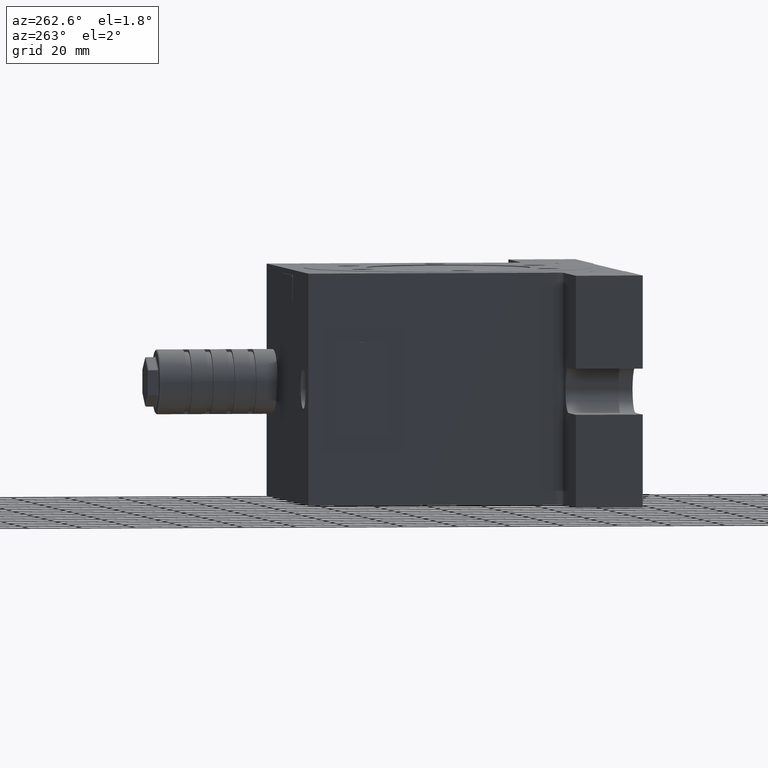
[diagram: clean part render]
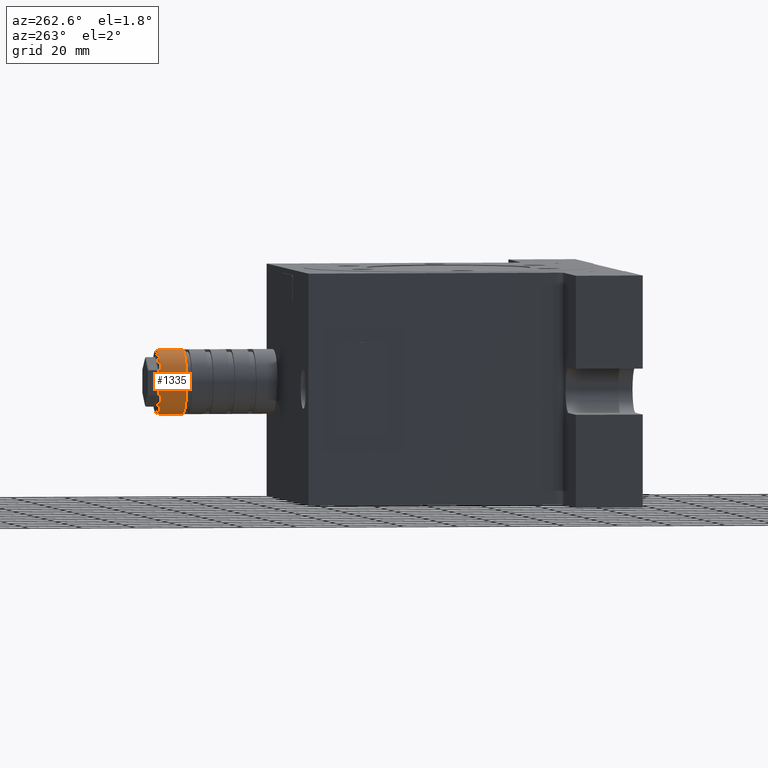
[diagram: same view with one face highlighted and labeled with its STEP entity id]
A machine part, auxiliary view. The second image highlights one B-rep face of the part: STEP entity #1335.
In plain terms, the highlighted cylindrical surface (edge-blend (fillet) strip) has radius 12 mm, axis along (0, -1, 0).
Its self-contained STEP definition (entity closure, byte-faithful):
#59 = EDGE_CURVE ( 'NONE', #2944, #10993, #1687, .T. ) ;
#64 = CARTESIAN_POINT ( 'NONE',  ( 40.00000000000000000, 94.00000000000000000, 0.0000000000000000000 ) ) ;
#362 = DIRECTION ( 'NONE',  ( 0.0000000000000000000, -1.000000000000000000, 0.0000000000000000000 ) ) ;
#761 = CARTESIAN_POINT ( 'NONE',  ( 40.00000000000000000, 103.5000000000000000, -12.00000000000000000 ) ) ;
#1335 = ADVANCED_FACE ( 'NONE', ( #1885 ), #14977, .T. ) ;
#1667 = AXIS2_PLACEMENT_3D ( 'NONE', #14457, #11021, #9215 ) ;
#1687 = LINE ( 'NONE', #17852, #16370 ) ;
#1697 = ORIENTED_EDGE ( 'NONE', *, *, #19997, .T. ) ;
#1768 = EDGE_CURVE ( 'NONE', #2013, #10993, #5868, .T. ) ;
#1885 = FACE_OUTER_BOUND ( 'NONE', #14438, .T. ) ;
#2013 = VERTEX_POINT ( 'NONE', #5761 ) ;
#2944 = VERTEX_POINT ( 'NONE', #12645 ) ;
#4567 = DIRECTION ( 'NONE',  ( 0.0000000000000000000, -1.000000000000000000, 0.0000000000000000000 ) ) ;
#5761 = CARTESIAN_POINT ( 'NONE',  ( 40.00000000000000000, 94.00000000000000000, -12.00000000000000000 ) ) ;
#5868 = CIRCLE ( 'NONE', #5942, 12.00000000000000000 ) ;
#5942 = AXIS2_PLACEMENT_3D ( 'NONE', #64, #13796, #19017 ) ;
#6357 = VECTOR ( 'NONE', #362, 1000.000000000000000 ) ;
#7128 = LINE ( 'NONE', #7446, #6357 ) ;
#7446 = CARTESIAN_POINT ( 'NONE',  ( 40.00000000000000000, 104.0000000000000000, -12.00000000000000000 ) ) ;
#9215 = DIRECTION ( 'NONE',  ( 0.0000000000000000000, 0.0000000000000000000, -1.000000000000000000 ) ) ;
#10217 = ORIENTED_EDGE ( 'NONE', *, *, #19601, .T. ) ;
#10993 = VERTEX_POINT ( 'NONE', #19558 ) ;
#11021 = DIRECTION ( 'NONE',  ( -0.0000000000000000000, -1.000000000000000000, -0.0000000000000000000 ) ) ;
#11884 = ORIENTED_EDGE ( 'NONE', *, *, #1768, .T. ) ;
#12645 = CARTESIAN_POINT ( 'NONE',  ( 40.00000000000000000, 103.5000000000000000, 12.00000000000000000 ) ) ;
#13796 = DIRECTION ( 'NONE',  ( 0.0000000000000000000, 1.000000000000000000, 0.0000000000000000000 ) ) ;
#14438 = EDGE_LOOP ( 'NONE', ( #1697, #10217, #11884, #17537 ) ) ;
#14457 = CARTESIAN_POINT ( 'NONE',  ( 40.00000000000000000, 103.5000000000000000, 0.0000000000000000000 ) ) ;
#14977 = CYLINDRICAL_SURFACE ( 'NONE', #18564, 12.00000000000000000 ) ;
#15966 = DIRECTION ( 'NONE',  ( 0.0000000000000000000, -1.000000000000000000, 0.0000000000000000000 ) ) ;
#15967 = CIRCLE ( 'NONE', #1667, 12.00000000000000000 ) ;
#16370 = VECTOR ( 'NONE', #15966, 1000.000000000000000 ) ;
#16636 = VERTEX_POINT ( 'NONE', #761 ) ;
#17537 = ORIENTED_EDGE ( 'NONE', *, *, #59, .F. ) ;
#17852 = CARTESIAN_POINT ( 'NONE',  ( 40.00000000000000000, 104.0000000000000000, 12.00000000000000000 ) ) ;
#18093 = CARTESIAN_POINT ( 'NONE',  ( 40.00000000000000000, 104.0000000000000000, 0.0000000000000000000 ) ) ;
#18321 = DIRECTION ( 'NONE',  ( 0.0000000000000000000, 0.0000000000000000000, 1.000000000000000000 ) ) ;
#18564 = AXIS2_PLACEMENT_3D ( 'NONE', #18093, #4567, #18321 ) ;
#19017 = DIRECTION ( 'NONE',  ( 0.0000000000000000000, 0.0000000000000000000, -1.000000000000000000 ) ) ;
#19558 = CARTESIAN_POINT ( 'NONE',  ( 40.00000000000000000, 94.00000000000000000, 12.00000000000000000 ) ) ;
#19601 = EDGE_CURVE ( 'NONE', #16636, #2013, #7128, .T. ) ;
#19997 = EDGE_CURVE ( 'NONE', #2944, #16636, #15967, .T. ) ;